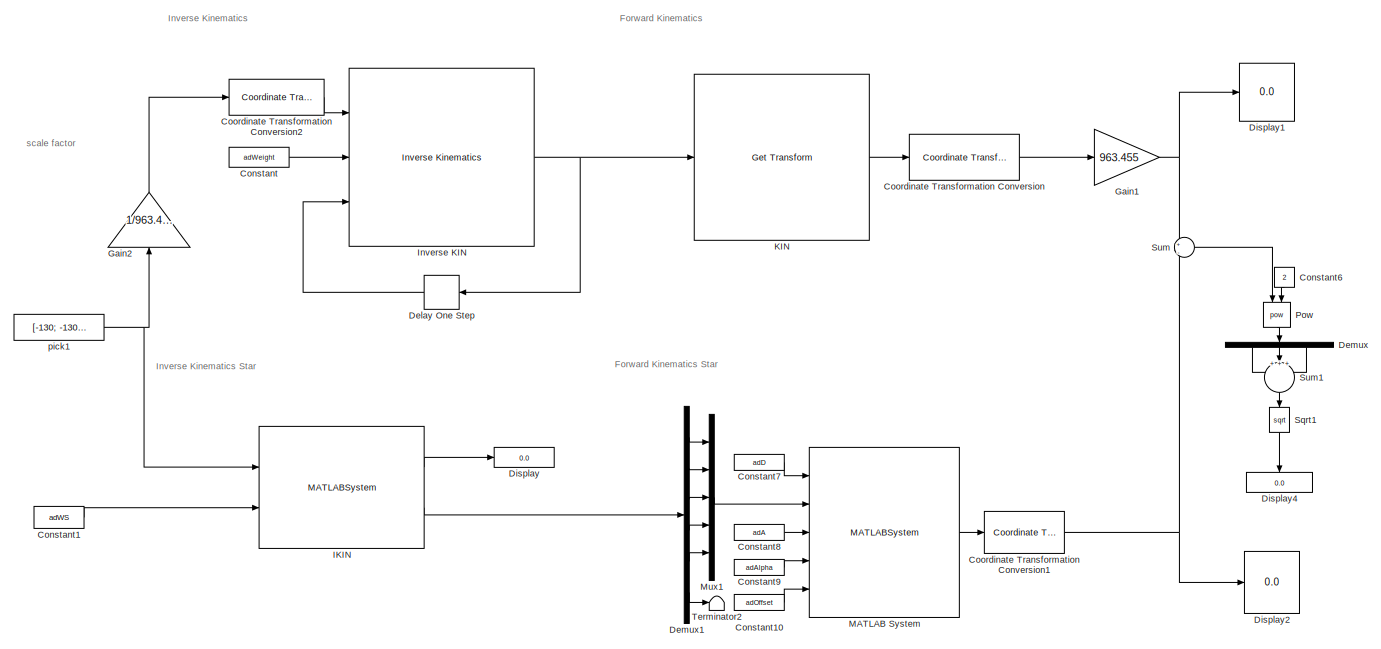
[diagram: root canvas - part 1/2, full width, top band]
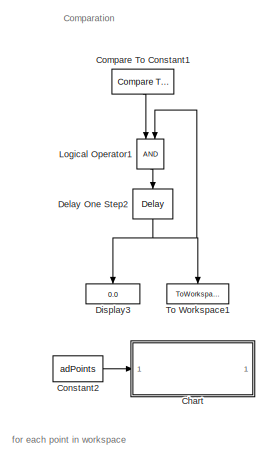
[diagram: root canvas - part 2/2, bottom center region]
MODEL slx_1e58ef40f704
KIND model
CONFIG AbsTol = auto
CONFIG EnableMultiTasking = off
CONFIG FixedStep = auto
CONFIG MaxStep = auto
CONFIG MinStep = auto
CONFIG RelTol = 1e-3
CONFIG SampleTimeConstraint = Unconstrained
CONFIG SolverName = VariableStepAuto
CONFIG StartTime = 0.0
CONFIG StopTime = inf
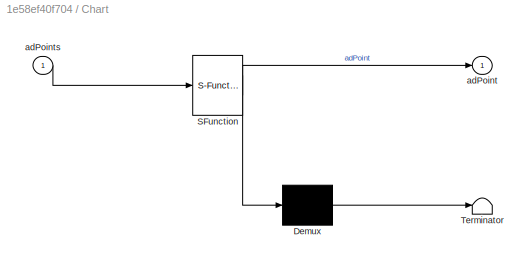
BLOCK [SubSystem] Chart
  Commented = on
  ErrorFcn = Stateflow.Translate.translate
  PermitHierarchicalResolution = ExplicitOnly
  Ports = [1, 1]
  RequestExecContextInheritance = off
  SFBlockType = Chart
  TreatAsAtomicUnit = on
BLOCK [Demux] Chart/ Demux 
  Outputs = 1
  Ports = [1, 1]
BLOCK [S-Function] Chart/ SFunction 
  EnableBusSupport = on
  FunctionName = sf_sfun
  PortCounts = [1 2]
  Ports = [1, 2]
  SFcnIsStateOwnerBlock = off
  SFunctionDeploymentMode = off
  Tag = Stateflow S-Function 3
BLOCK [Terminator] Chart/ Terminator 
BLOCK [Outport] Chart/adPoint
BLOCK [Inport] Chart/adPoints
BLOCK [Reference] Compare To Constant1  REF=simulink/Logic and Bit
Operations/Compare
To Constant
  NameLocation = left
  Ports = [1, 1]
  SourceBlock = simulink/Logic and Bit\nOperations/Compare\nTo Constant
  SourceProductBaseCode = SL
  SourceType = Compare To Constant
BLOCK [Constant] Constant
  Value = adWeight
BLOCK [Constant] Constant1
  Value = adWS
BLOCK [Constant] Constant10
  Value = adOffset
BLOCK [Constant] Constant2
  Commented = on
  Value = adPoints
BLOCK [Constant] Constant6
  NameLocation = left
  Value = 2
BLOCK [Constant] Constant7
  Value = adD
BLOCK [Constant] Constant8
  Value = adA
BLOCK [Constant] Constant9
  Value = adAlpha
BLOCK [Reference] Coordinate Transformation Conversion  REF=robotcorelib/Coordinate Transformation Conversion
  Ports = [1, 1]
  SourceBlock = robotcorelib/Coordinate Transformation Conversion
  SourceProductBaseCode = NV,RO,RR,UV
  SourceType = robotics.slcore.internal.block.CoordinateTransformationConversion
BLOCK [Reference] Coordinate Transformation Conversion1  REF=robotcorelib/Coordinate Transformation Conversion
  Ports = [1, 1]
  SourceBlock = robotcorelib/Coordinate Transformation Conversion
  SourceProductBaseCode = NV,RO,RR,UV
  SourceType = robotics.slcore.internal.block.CoordinateTransformationConversion
BLOCK [Reference] Coordinate Transformation Conversion2  REF=robotcorelib/Coordinate Transformation Conversion
  Ports = [1, 1]
  SourceBlock = robotcorelib/Coordinate Transformation Conversion
  SourceProductBaseCode = NV,RO,RR,UV
  SourceType = robotics.slcore.internal.block.CoordinateTransformationConversion
BLOCK [Delay] Delay One Step
  DelayLength = 1
  InitialCondition = adHome6rad
  InputPortMap = u0
  NameLocation = top
  Ports = [1, 1]
BLOCK [Delay] Delay One Step2
  DelayLength = 1
  InitialCondition = true
  InputPortMap = u0
  NameLocation = left
  Ports = [1, 1]
BLOCK [Demux] Demux
  NameLocation = left
  Outputs = 3
  Ports = [1, 3]
BLOCK [Demux] Demux1
  Outputs = 6
  Ports = [1, 6]
BLOCK [Display] Display
  Decimation = 1
  Ports = [1]
BLOCK [Display] Display1
  Decimation = 1
  Ports = [1]
BLOCK [Display] Display2
  Decimation = 1
  Ports = [1]
BLOCK [Display] Display3
  Decimation = 1
  NameLocation = left
  Ports = [1]
BLOCK [Display] Display4
  Decimation = 1
  NameLocation = left
  Ports = [1]
BLOCK [Gain] Gain1
  Gain = 963.455
BLOCK [Gain] Gain2
  Gain = 1/963.455
  NameLocation = right
BLOCK [MATLABSystem] IKIN
  MaskDisplay = disp('oIKINSolver');\nport_label('input',1,'adPoint');\nport_label('input',2,'adWS');\nport_label('output',1,'bFlag');\nport_label('output',2,'adJC');
  MaskType = oIKINSolver
  Ports = [2, 2]
  SimulateUsing = Code generation
  System = oIKINSolver
  adBaseMinMaxDeg = adMotorLimits(1,:)
  adElbowMinMaxDeg = adMotorLimits(3,:)
  adHomeDeg = adHome6deg
  adPitchMinMaxDeg = adMotorLimits(4,:)
  adRollMinMaxDeg = adMotorLimits(5,:)
  adShoulderMinMaxDeg = adMotorLimits(2,:)
  nArmLength = adLinkLenghts(2)
  nForearmLength = adLinkLenghts(3)
  nGroundLength = adLinkLenghts(1)
  nHandLength = adLinkLenghts(4)
BLOCK [Reference] Inverse KIN  REF=robotmaniplib/Inverse Kinematics
  Ports = [3, 1]
  SourceBlock = robotmaniplib/Inverse Kinematics
  SourceProductBaseCode = RO
  SourceType = Inverse Kinematics
BLOCK [Reference] KIN  REF=robotmaniplib/Get Transform
  Ports = [1, 1]
  SourceBlock = robotmaniplib/Get Transform
  SourceProductBaseCode = RO
  SourceType = Get Transform
BLOCK [Logic] Logical Operator1
  AllPortsSameDT = off
  NameLocation = left
  OutDataTypeStr = boolean
  Ports = [2, 1]
BLOCK [MATLABSystem] MATLAB System
  MaskDisplay = disp('oKINSolver');\nport_label('input',1,'adD');\nport_label('input',2,'adQ');\nport_label('input',3,'adA');\nport_label('input',4,'adAlpha');\nport_label('input',5,'adOffset');\nport_label('output',1,'adT');
  MaskType = oKINSolver
  Ports = [5, 1]
  SimulateUsing = Code generation
  System = oKINSolver
  adBaseMinMaxDeg = adMotorLimits(1,:)
  adElbowMinMaxDeg = adMotorLimits(3,:)
  adHomeDeg = adHome6deg
  adPitchMinMaxDeg = adMotorLimits(4,:)
  adRollMinMaxDeg = adMotorLimits(5,:)
  adShoulderMinMaxDeg = adMotorLimits(2,:)
  nArmLength = adLinkLenghts(2)
  nForearmLength = adLinkLenghts(3)
  nGroundLength = adLinkLenghts(1)
  nHandLength = adLinkLenghts(4)
BLOCK [Mux] Mux1
  DisplayOption = bar
  Inputs = 5
  Ports = [5, 1]
BLOCK [Math] Pow
  NameLocation = left
  Operator = pow
  Ports = [2, 1]
  RndMeth = Zero
BLOCK [Sqrt] Sqrt1
  NameLocation = left
BLOCK [Sum] Sum
  Inputs = +|-
  Ports = [2, 1]
BLOCK [Sum] Sum1
  Inputs = +++
  NameLocation = left
  Ports = [3, 1]
BLOCK [Terminator] Terminator2
BLOCK [ToWorkspace] To Workspace1
  FixptAsFi = on
  MaxDataPoints = inf
  NameLocation = left
  Ports = [1]
  SampleTime = -1
  SaveFormat = Timeseries
  VariableName = result1
BLOCK [Constant] pick1
  Value = [-130; -130; 10]
ANNOTATION (root): for each point in workspace
ANNOTATION (root): scale factor
ANNOTATION (root): Comparation
ANNOTATION (root): Forward Kinematics
ANNOTATION (root): Forward Kinematics Star
ANNOTATION (root): Inverse Kinematics
ANNOTATION (root): Inverse Kinematics Star
LINE Compare To Constant1:1 -> Logical Operator1:1
LINE Constant10:1 -> MATLAB System:5
LINE Constant1:1 -> IKIN:2
LINE Constant2:1 -> Chart:1
LINE Constant6:1 -> Pow:2
LINE Constant7:1 -> MATLAB System:1
LINE Constant8:1 -> MATLAB System:3
LINE Constant9:1 -> MATLAB System:4
LINE Constant:1 -> Inverse KIN:2
NET Coordinate Transformation Conversion1:1 -> Display2:1, Sum:2
LINE Coordinate Transformation Conversion2:1 -> Inverse KIN:1
LINE Coordinate Transformation Conversion:1 -> Gain1:1
NET Delay One Step2:1 -> Display3:1, Logical Operator1:2, To Workspace1:1
LINE Delay One Step:1 -> Inverse KIN:3
LINE Demux1:1 -> Mux1:1
LINE Demux1:2 -> Mux1:2
LINE Demux1:3 -> Mux1:3
LINE Demux1:4 -> Mux1:4
LINE Demux1:5 -> Mux1:5
LINE Demux1:6 -> Terminator2:1
LINE Demux:1 -> Sum1:1
LINE Demux:2 -> Sum1:2
LINE Demux:3 -> Sum1:3
NET Gain1:1 -> Display1:1, Sum:1
LINE Gain2:1 -> Coordinate Transformation Conversion2:1
LINE IKIN:1 -> Display:1
LINE IKIN:2 -> Demux1:1
NET Inverse KIN:1 -> Delay One Step:1, KIN:1
LINE KIN:1 -> Coordinate Transformation Conversion:1
LINE Logical Operator1:1 -> Delay One Step2:1
LINE MATLAB System:1 -> Coordinate Transformation Conversion1:1
LINE Mux1:1 -> MATLAB System:2
LINE Pow:1 -> Demux:1
LINE Sqrt1:1 -> Display4:1
LINE Sum1:1 -> Sqrt1:1
LINE Sum:1 -> Pow:1
NET pick1:1 -> Gain2:1, IKIN:1
note: NET lines group one-source signal fan-out (src -> all destinations, sorted); 1:1 wires keep LINE
CHART Chart states=0 transitions=0
CHART  states=0 transitions=0
